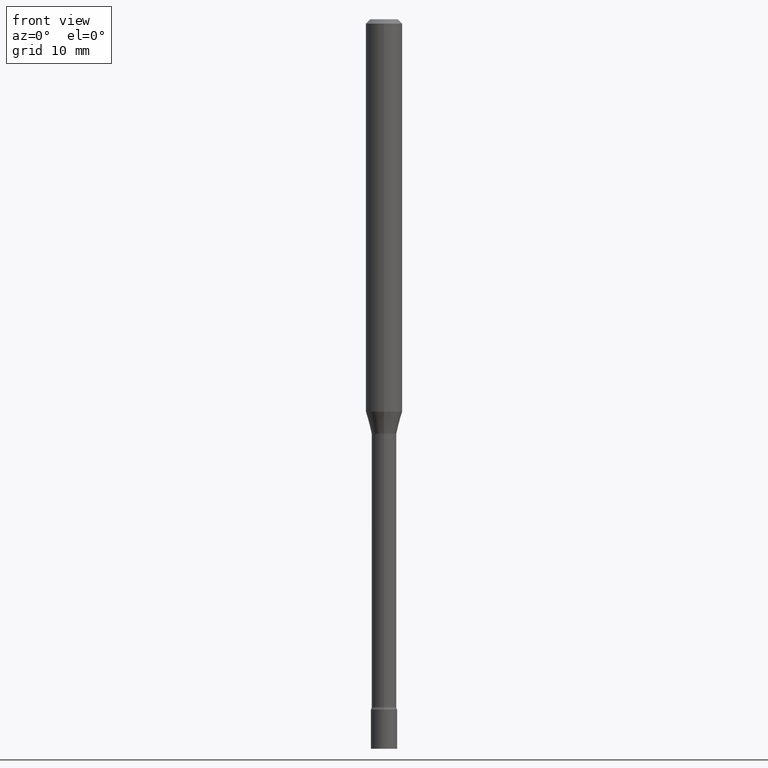
[diagram: clean part render]
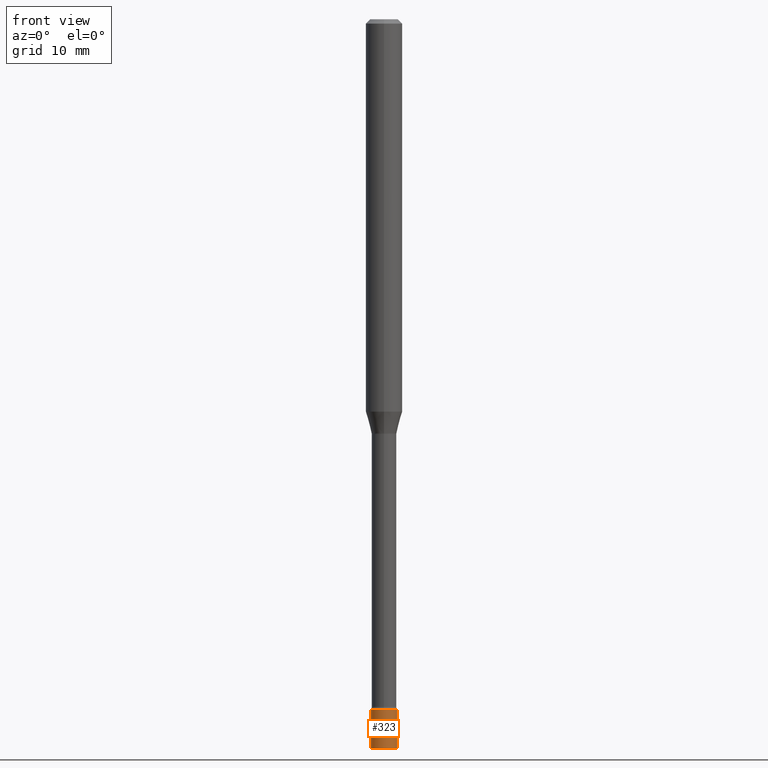
[diagram: same view with one face highlighted and labeled with its STEP entity id]
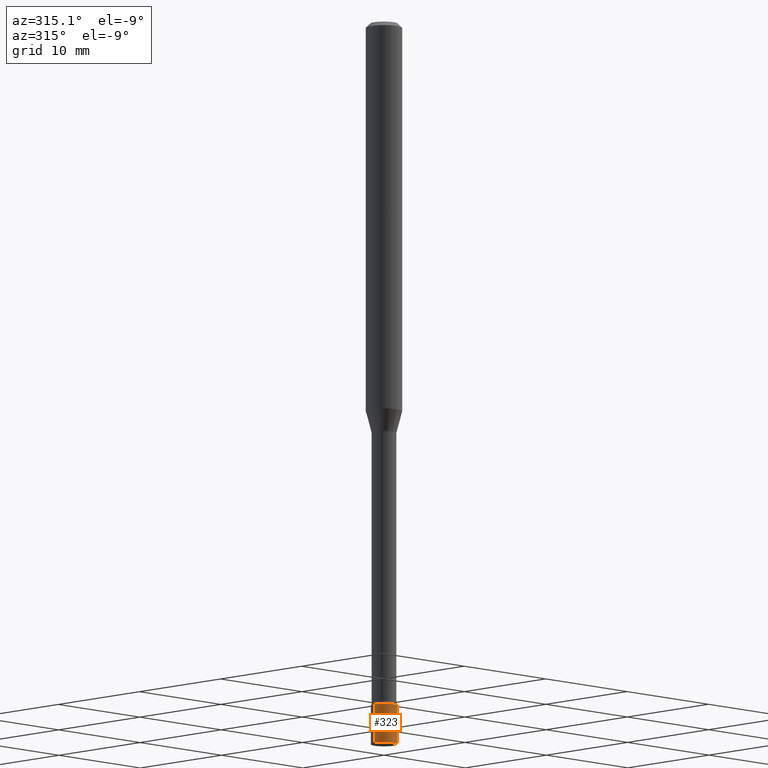
[diagram: same view with one face highlighted and labeled with its STEP entity id]
A machine part, front view. The second image highlights one B-rep face of the part: STEP entity #323.
A second angle (auxiliary view) of the same face is appended — the face is thin or edge-on in the first view.
In plain terms, the highlighted cylindrical surface (edge-blend (fillet) strip) has radius 1.143 mm, axis along (-0, 0, 1).
Its self-contained STEP definition (entity closure, byte-faithful):
#5 = AXIS2_PLACEMENT_3D ( 'NONE', #251, #126, #422 ) ;
#14 = VERTEX_POINT ( 'NONE', #404 ) ;
#32 = CIRCLE ( 'NONE', #5, 0.04499999999999999833 ) ;
#80 = CARTESIAN_POINT ( 'NONE',  ( -0.04499999999999999833, 3.197442310920450718E-16, -2.213520790614707560E-30 ) ) ;
#88 = CIRCLE ( 'NONE', #131, 0.04499999999999999833 ) ;
#95 = ORIENTED_EDGE ( 'NONE', *, *, #286, .F. ) ;
#126 = DIRECTION ( 'NONE',  ( -2.445468806185136597E-29, 3.491481338843145583E-15, 1.000000000000000000 ) ) ;
#128 = ORIENTED_EDGE ( 'NONE', *, *, #361, .F. ) ;
#131 = AXIS2_PLACEMENT_3D ( 'NONE', #406, #196, #490 ) ;
#133 = CARTESIAN_POINT ( 'NONE',  ( 0.04499999999999999833, -3.142333204958819823E-16, 2.194279549108170967E-30 ) ) ;
#137 = DIRECTION ( 'NONE',  ( -2.445468806185136597E-29, 3.491481338843145583E-15, 1.000000000000000000 ) ) ;
#162 = CARTESIAN_POINT ( 'NONE',  ( -0.04499999999999999833, -8.173284125643907127E-15, -2.365000000000000213 ) ) ;
#172 = VERTEX_POINT ( 'NONE', #162 ) ;
#196 = DIRECTION ( 'NONE',  ( -2.445468806185136597E-29, 3.491481338843145583E-15, 1.000000000000000000 ) ) ;
#210 = FACE_OUTER_BOUND ( 'NONE', #250, .T. ) ;
#214 = CYLINDRICAL_SURFACE ( 'NONE', #443, 0.04499999999999999833 ) ;
#229 = EDGE_CURVE ( 'NONE', #14, #368, #88, .T. ) ;
#242 = LINE ( 'NONE', #80, #290 ) ;
#250 = EDGE_LOOP ( 'NONE', ( #95, #252, #338, #128 ) ) ;
#251 = CARTESIAN_POINT ( 'NONE',  ( 5.783533726627847872E-29, -8.257353366364040046E-15, -2.365000000000000213 ) ) ;
#252 = ORIENTED_EDGE ( 'NONE', *, *, #229, .T. ) ;
#286 = EDGE_CURVE ( 'NONE', #14, #172, #242, .T. ) ;
#290 = VECTOR ( 'NONE', #466, 39.37007874015748143 ) ;
#294 = DIRECTION ( 'NONE',  ( -2.445468806185136877E-29, 3.491481338843145188E-15, 1.000000000000000000 ) ) ;
#295 = CARTESIAN_POINT ( 'NONE',  ( 0.000000000000000000, 0.000000000000000000, 0.000000000000000000 ) ) ;
#305 = CARTESIAN_POINT ( 'NONE',  ( 0.04499999999999999833, -8.571586686859921733E-15, -2.365000000000000213 ) ) ;
#323 = ADVANCED_FACE ( 'NONE', ( #210 ), #214, .T. ) ;
#338 = ORIENTED_EDGE ( 'NONE', *, *, #416, .T. ) ;
#356 = VECTOR ( 'NONE', #294, 39.37007874015748143 ) ;
#361 = EDGE_CURVE ( 'NONE', #172, #465, #32, .T. ) ;
#368 = VERTEX_POINT ( 'NONE', #495 ) ;
#404 = CARTESIAN_POINT ( 'NONE',  ( -0.04499999999999999833, -8.173284125643907127E-15, -2.500000000000000000 ) ) ;
#406 = CARTESIAN_POINT ( 'NONE',  ( 6.113672015462842613E-29, -8.728703347107864943E-15, -2.500000000000000000 ) ) ;
#416 = EDGE_CURVE ( 'NONE', #368, #465, #493, .T. ) ;
#422 = DIRECTION ( 'NONE',  ( 1.000000000000000000, -6.982962677686269077E-15, 0.000000000000000000 ) ) ;
#443 = AXIS2_PLACEMENT_3D ( 'NONE', #295, #137, #492 ) ;
#465 = VERTEX_POINT ( 'NONE', #305 ) ;
#466 = DIRECTION ( 'NONE',  ( -2.445468806185136877E-29, 3.491481338843145188E-15, 1.000000000000000000 ) ) ;
#490 = DIRECTION ( 'NONE',  ( 1.000000000000000000, -6.982962677686246989E-15, 0.000000000000000000 ) ) ;
#492 = DIRECTION ( 'NONE',  ( 1.000000000000000000, -6.982962677686266711E-15, 4.876176775795935793E-29 ) ) ;
#493 = LINE ( 'NONE', #133, #356 ) ;
#495 = CARTESIAN_POINT ( 'NONE',  ( 0.04499999999999999833, -9.042936667603745051E-15, -2.500000000000000000 ) ) ;